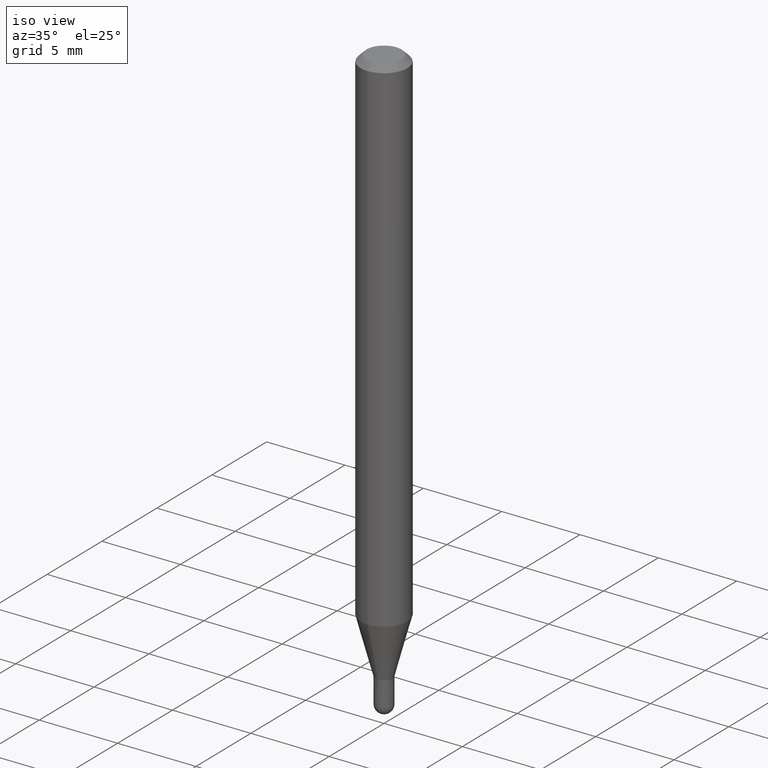
[diagram: clean part render]
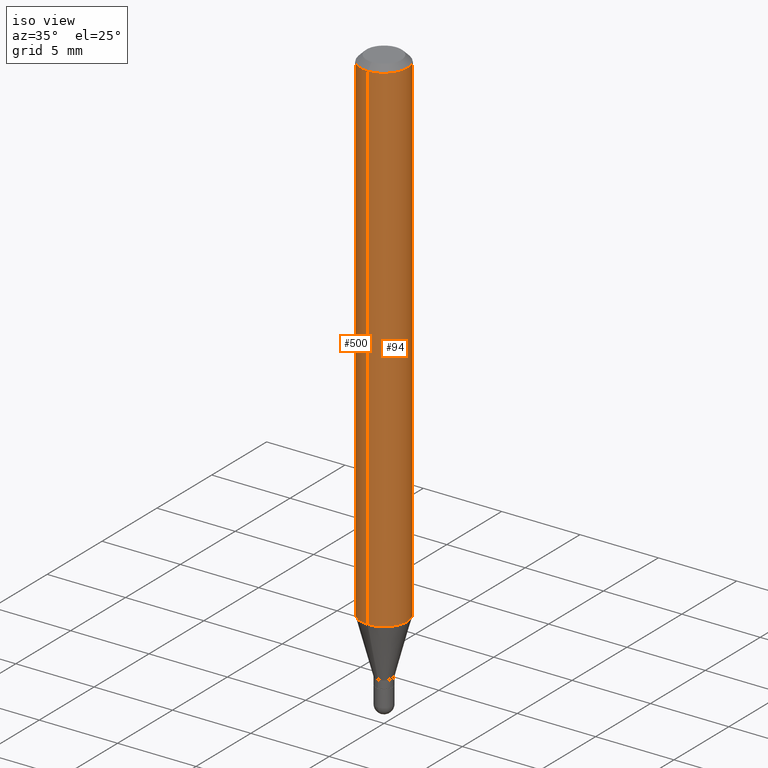
[diagram: same view with one multi-face feature highlighted, each face labeled with its STEP entity id]
A machine part, iso view. The highlighted faces form ONE feature: a constant-radius fillet chain: 2 tangent blend faces with common blend radius 1.4999 mm. The faces share edges in the B-rep.
Their STEP definitions:
[1] entity #500 (Cylinder):
#31 = VERTEX_POINT ( 'NONE', #189 ) ;
#43 = DIRECTION ( 'NONE',  ( -2.445429181695314527E-29, 3.491538083367856532E-15, 1.000000000000000000 ) ) ;
#44 = CARTESIAN_POINT ( 'NONE',  ( -4.123439461173736383E-16, -0.05905000000000005383, -0.01499999999999981730 ) ) ;
#60 = EDGE_CURVE ( 'NONE', #347, #104, #451, .T. ) ;
#65 = CARTESIAN_POINT ( 'NONE',  ( -4.123439461173739834E-16, -0.05904999999999999832, 2.061753238228719465E-16 ) ) ;
#67 = CARTESIAN_POINT ( 'NONE',  ( 4.195754854663703572E-16, 0.05904999999999994281, -0.01500000000000023016 ) ) ;
#82 = DIRECTION ( 'NONE',  ( -2.445429181695314527E-29, 3.491538083367856926E-15, 1.000000000000000000 ) ) ;
#104 = VERTEX_POINT ( 'NONE', #44 ) ;
#107 = DIRECTION ( 'NONE',  ( -2.445429181695314527E-29, 3.491538083367856532E-15, 1.000000000000000000 ) ) ;
#108 = VECTOR ( 'NONE', #43, 39.37007874015748143 ) ;
#124 = CARTESIAN_POINT ( 'NONE',  ( 3.668143772542977098E-31, -5.237307125051793302E-17, -0.01500000000000002373 ) ) ;
#132 = VECTOR ( 'NONE', #107, 39.37007874015748143 ) ;
#185 = EDGE_CURVE ( 'NONE', #240, #31, #376, .T. ) ;
#189 = CARTESIAN_POINT ( 'NONE',  ( -4.123439461173429220E-16, -0.05905000000000444615, -1.271521299796924298 ) ) ;
#193 = ORIENTED_EDGE ( 'NONE', *, *, #233, .F. ) ;
#204 = AXIS2_PLACEMENT_3D ( 'NONE', #287, #448, #455 ) ;
#233 = EDGE_CURVE ( 'NONE', #240, #347, #322, .T. ) ;
#240 = VERTEX_POINT ( 'NONE', #454 ) ;
#285 = DIRECTION ( 'NONE',  ( -6.982962677686265922E-15, -1.000000000000000000, 3.505890868245046092E-15 ) ) ;
#287 = CARTESIAN_POINT ( 'NONE',  ( 0.000000000000000000, 0.000000000000000000, 0.000000000000000000 ) ) ;
#310 = EDGE_LOOP ( 'NONE', ( #193, #470, #485, #385 ) ) ;
#313 = EDGE_CURVE ( 'NONE', #31, #104, #422, .T. ) ;
#321 = AXIS2_PLACEMENT_3D ( 'NONE', #124, #408, #285 ) ;
#322 = LINE ( 'NONE', #329, #108 ) ;
#325 = DIRECTION ( 'NONE',  ( -6.982962677686265922E-15, -1.000000000000000000, 4.626330217890369336E-15 ) ) ;
#329 = CARTESIAN_POINT ( 'NONE',  ( 4.195754854663390985E-16, 0.05904999999999999832, -2.061753238228719465E-16 ) ) ;
#347 = VERTEX_POINT ( 'NONE', #67 ) ;
#357 = CARTESIAN_POINT ( 'NONE',  ( 3.109415291670556053E-29, -4.439565042054361610E-15, -1.271521299796924742 ) ) ;
#360 = FACE_OUTER_BOUND ( 'NONE', #310, .T. ) ;
#376 = CIRCLE ( 'NONE', #477, 0.05904999999999999832 ) ;
#385 = ORIENTED_EDGE ( 'NONE', *, *, #60, .F. ) ;
#408 = DIRECTION ( 'NONE',  ( -2.445429181695314527E-29, 3.491538083367856926E-15, 1.000000000000000000 ) ) ;
#422 = LINE ( 'NONE', #65, #132 ) ;
#448 = DIRECTION ( 'NONE',  ( -2.445429181695314527E-29, 3.491538083367856926E-15, 1.000000000000000000 ) ) ;
#451 = CIRCLE ( 'NONE', #321, 0.05904999999999999832 ) ;
#454 = CARTESIAN_POINT ( 'NONE',  ( 4.195754854663700120E-16, 0.05904999999999554355, -1.271521299796924964 ) ) ;
#455 = DIRECTION ( 'NONE',  ( -6.982962677686265922E-15, -1.000000000000000000, 3.491538083367856926E-15 ) ) ;
#470 = ORIENTED_EDGE ( 'NONE', *, *, #185, .T. ) ;
#477 = AXIS2_PLACEMENT_3D ( 'NONE', #357, #82, #325 ) ;
#485 = ORIENTED_EDGE ( 'NONE', *, *, #313, .T. ) ;
#490 = CYLINDRICAL_SURFACE ( 'NONE', #204, 0.05904999999999999832 ) ;
#500 = ADVANCED_FACE ( 'NONE', ( #360 ), #490, .T. ) ;
[2] entity #94 (Cylinder):
#10 = AXIS2_PLACEMENT_3D ( 'NONE', #46, #396, #359 ) ;
#31 = VERTEX_POINT ( 'NONE', #189 ) ;
#43 = DIRECTION ( 'NONE',  ( -2.445429181695314527E-29, 3.491538083367856532E-15, 1.000000000000000000 ) ) ;
#44 = CARTESIAN_POINT ( 'NONE',  ( -4.123439461173736383E-16, -0.05905000000000005383, -0.01499999999999981730 ) ) ;
#46 = CARTESIAN_POINT ( 'NONE',  ( 3.668143772542977098E-31, -5.237307125051793302E-17, -0.01500000000000002373 ) ) ;
#48 = CIRCLE ( 'NONE', #280, 0.05904999999999999832 ) ;
#65 = CARTESIAN_POINT ( 'NONE',  ( -4.123439461173739834E-16, -0.05904999999999999832, 2.061753238228719465E-16 ) ) ;
#67 = CARTESIAN_POINT ( 'NONE',  ( 4.195754854663703572E-16, 0.05904999999999994281, -0.01500000000000023016 ) ) ;
#87 = CARTESIAN_POINT ( 'NONE',  ( 3.109415291670556053E-29, -4.439565042054361610E-15, -1.271521299796924742 ) ) ;
#94 = ADVANCED_FACE ( 'NONE', ( #330 ), #253, .T. ) ;
#104 = VERTEX_POINT ( 'NONE', #44 ) ;
#107 = DIRECTION ( 'NONE',  ( -2.445429181695314527E-29, 3.491538083367856532E-15, 1.000000000000000000 ) ) ;
#108 = VECTOR ( 'NONE', #43, 39.37007874015748143 ) ;
#116 = ORIENTED_EDGE ( 'NONE', *, *, #118, .F. ) ;
#118 = EDGE_CURVE ( 'NONE', #104, #347, #380, .T. ) ;
#132 = VECTOR ( 'NONE', #107, 39.37007874015748143 ) ;
#147 = EDGE_LOOP ( 'NONE', ( #507, #383, #116, #314 ) ) ;
#189 = CARTESIAN_POINT ( 'NONE',  ( -4.123439461173429220E-16, -0.05905000000000444615, -1.271521299796924298 ) ) ;
#215 = DIRECTION ( 'NONE',  ( -6.982962677686265922E-15, -1.000000000000000000, 3.491538083367856926E-15 ) ) ;
#233 = EDGE_CURVE ( 'NONE', #240, #347, #322, .T. ) ;
#240 = VERTEX_POINT ( 'NONE', #454 ) ;
#243 = DIRECTION ( 'NONE',  ( -2.445429181695314527E-29, 3.491538083367856926E-15, 1.000000000000000000 ) ) ;
#250 = DIRECTION ( 'NONE',  ( -2.445429181695314527E-29, 3.491538083367856926E-15, 1.000000000000000000 ) ) ;
#253 = CYLINDRICAL_SURFACE ( 'NONE', #387, 0.05904999999999999832 ) ;
#280 = AXIS2_PLACEMENT_3D ( 'NONE', #87, #243, #364 ) ;
#313 = EDGE_CURVE ( 'NONE', #31, #104, #422, .T. ) ;
#314 = ORIENTED_EDGE ( 'NONE', *, *, #313, .F. ) ;
#322 = LINE ( 'NONE', #329, #108 ) ;
#329 = CARTESIAN_POINT ( 'NONE',  ( 4.195754854663390985E-16, 0.05904999999999999832, -2.061753238228719465E-16 ) ) ;
#330 = FACE_OUTER_BOUND ( 'NONE', #147, .T. ) ;
#347 = VERTEX_POINT ( 'NONE', #67 ) ;
#359 = DIRECTION ( 'NONE',  ( -6.982962677686265922E-15, -1.000000000000000000, 3.505890868245046092E-15 ) ) ;
#364 = DIRECTION ( 'NONE',  ( -6.982962677686265922E-15, -1.000000000000000000, 4.626330217890369336E-15 ) ) ;
#380 = CIRCLE ( 'NONE', #10, 0.05904999999999999832 ) ;
#383 = ORIENTED_EDGE ( 'NONE', *, *, #233, .T. ) ;
#387 = AXIS2_PLACEMENT_3D ( 'NONE', #495, #250, #215 ) ;
#396 = DIRECTION ( 'NONE',  ( -2.445429181695314527E-29, 3.491538083367856926E-15, 1.000000000000000000 ) ) ;
#422 = LINE ( 'NONE', #65, #132 ) ;
#424 = EDGE_CURVE ( 'NONE', #31, #240, #48, .T. ) ;
#454 = CARTESIAN_POINT ( 'NONE',  ( 4.195754854663700120E-16, 0.05904999999999554355, -1.271521299796924964 ) ) ;
#495 = CARTESIAN_POINT ( 'NONE',  ( 0.000000000000000000, 0.000000000000000000, 0.000000000000000000 ) ) ;
#507 = ORIENTED_EDGE ( 'NONE', *, *, #424, .T. ) ;